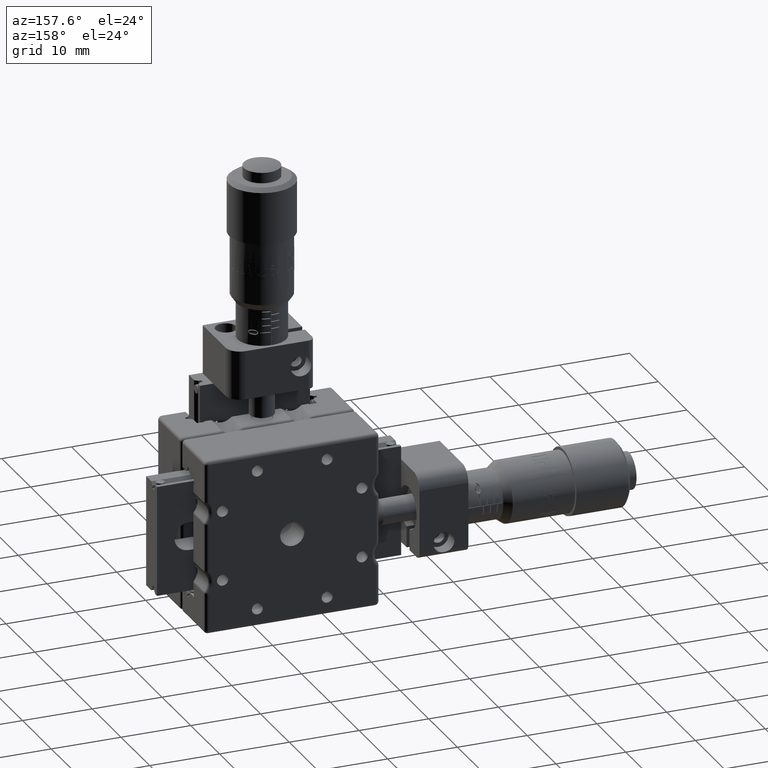
[diagram: clean part render]
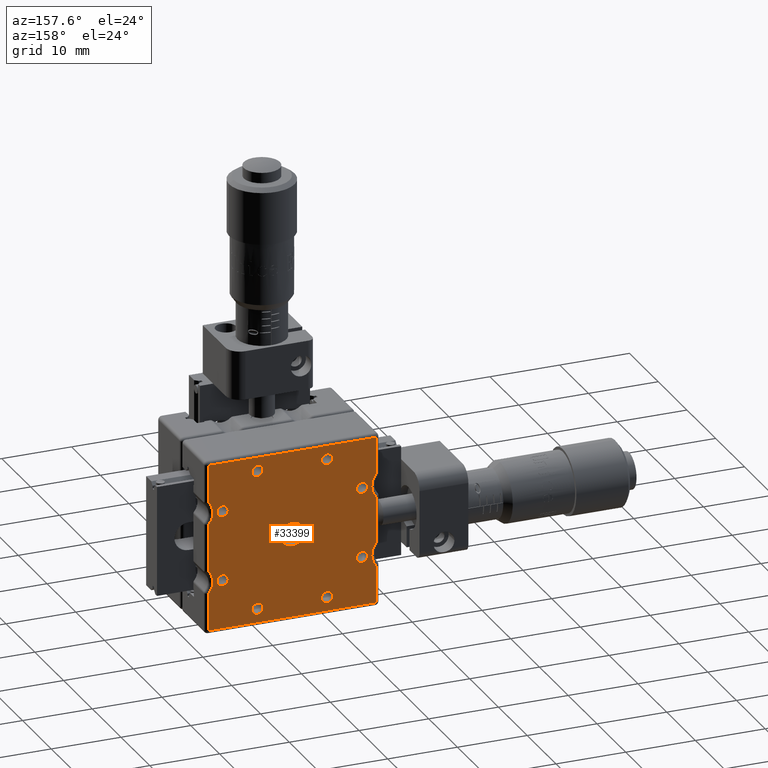
[diagram: same view with one face highlighted and labeled with its STEP entity id]
A machine part, auxiliary view. The second image highlights one B-rep face of the part: STEP entity #33399.
In plain terms, the highlighted planar face has unit normal (0, -1, -0).
Its self-contained STEP definition (entity closure, byte-faithful):
#472 = ORIENTED_EDGE ( 'NONE', *, *, #6171, .F. ) ;
#822 = LINE ( 'NONE', #61356, #42499 ) ;
#1231 = EDGE_CURVE ( 'NONE', #59521, #19149, #70588, .T. ) ;
#1319 = ORIENTED_EDGE ( 'NONE', *, *, #9478, .T. ) ;
#1430 = ORIENTED_EDGE ( 'NONE', *, *, #11094, .F. ) ;
#1794 = CARTESIAN_POINT ( 'NONE',  ( 13.90000000000090500, 16.80000000000006100, 5.000000000000875700 ) ) ;
#1801 = CIRCLE ( 'NONE', #46111, 0.7999999999999908300 ) ;
#2270 = AXIS2_PLACEMENT_3D ( 'NONE', #32698, #20979, #59520 ) ;
#3761 = DIRECTION ( 'NONE',  ( 1.227876978355398100E-016, -1.000000000000000000, -2.515652407670608200E-016 ) ) ;
#3907 = EDGE_CURVE ( 'NONE', #68185, #31062, #36801, .T. ) ;
#4210 = EDGE_CURVE ( 'NONE', #15828, #25136, #11263, .T. ) ;
#4254 = EDGE_LOOP ( 'NONE', ( #7870, #7266 ) ) ;
#4315 = CIRCLE ( 'NONE', #2270, 0.7999999999999917200 ) ;
#4368 = CARTESIAN_POINT ( 'NONE',  ( 9.200000000000891000, 16.80000000000008600, -4.999999999999147300 ) ) ;
#4640 = VECTOR ( 'NONE', #44980, 1000.000000000000000 ) ;
#4719 = CIRCLE ( 'NONE', #25484, 0.7999999999999917200 ) ;
#4734 = CARTESIAN_POINT ( 'NONE',  ( -11.99999999999919900, 16.80000000000002900, 12.50000000000092000 ) ) ;
#4745 = EDGE_CURVE ( 'NONE', #32799, #48071, #37639, .T. ) ;
#4914 = ORIENTED_EDGE ( 'NONE', *, *, #53458, .F. ) ;
#5644 = ORIENTED_EDGE ( 'NONE', *, *, #41510, .F. ) ;
#5823 = CARTESIAN_POINT ( 'NONE',  ( 12.00000000000090600, 16.80000000000009000, -12.49999999999918500 ) ) ;
#6171 = EDGE_CURVE ( 'NONE', #46393, #20203, #54425, .T. ) ;
#6374 = LINE ( 'NONE', #63271, #4640 ) ;
#6593 = DIRECTION ( 'NONE',  ( 1.227876978355398100E-016, -1.000000000000000000, -2.515652407670645600E-016 ) ) ;
#6645 = AXIS2_PLACEMENT_3D ( 'NONE', #17905, #56863, #7656 ) ;
#7218 = CARTESIAN_POINT ( 'NONE',  ( -5.799999999999133000, 16.80000000000003300, 10.00000000000089400 ) ) ;
#7266 = ORIENTED_EDGE ( 'NONE', *, *, #51140, .F. ) ;
#7652 = ORIENTED_EDGE ( 'NONE', *, *, #41214, .T. ) ;
#7656 = DIRECTION ( 'NONE',  ( 1.000000000000000000, 0.0000000000000000000, 0.0000000000000000000 ) ) ;
#7763 = DIRECTION ( 'NONE',  ( -1.227876978355398100E-016, 1.000000000000000000, 1.291005608523286500E-016 ) ) ;
#7870 = ORIENTED_EDGE ( 'NONE', *, *, #39373, .F. ) ;
#8167 = DIRECTION ( 'NONE',  ( 1.000000000000000000, 0.0000000000000000000, 0.0000000000000000000 ) ) ;
#8244 = EDGE_LOOP ( 'NONE', ( #5644, #12416 ) ) ;
#8655 = DIRECTION ( 'NONE',  ( -1.227876978355398100E-016, 1.000000000000000000, 1.291005608523286500E-016 ) ) ;
#9239 = CARTESIAN_POINT ( 'NONE',  ( -11.99999999999919900, 16.80000000000005800, -6.428285685707740200 ) ) ;
#9288 = VECTOR ( 'NONE', #47335, 1000.000000000000000 ) ;
#9478 = EDGE_CURVE ( 'NONE', #48170, #15828, #51620, .T. ) ;
#9484 = CIRCLE ( 'NONE', #27191, 0.7999999999999908300 ) ;
#9579 = EDGE_CURVE ( 'NONE', #12266, #22548, #4719, .T. ) ;
#9778 = CARTESIAN_POINT ( 'NONE',  ( -9.999999999999172200, 16.80000000000003300, 5.000000000000873100 ) ) ;
#9949 = EDGE_LOOP ( 'NONE', ( #26007, #29462, #58750, #23404, #26403, #1319, #65244, #10571, #22821, #7652, #35521, #29638 ) ) ;
#10358 = DIRECTION ( 'NONE',  ( 1.000000000000000000, 0.0000000000000000000, 0.0000000000000000000 ) ) ;
#10473 = VERTEX_POINT ( 'NONE', #29522 ) ;
#10476 = CARTESIAN_POINT ( 'NONE',  ( -4.999999999999144700, 16.80000000000003300, 10.00000000000089400 ) ) ;
#10571 = ORIENTED_EDGE ( 'NONE', *, *, #12342, .T. ) ;
#11032 = CARTESIAN_POINT ( 'NONE',  ( 12.00000000000090600, 16.80000000000009000, -12.49999999999918500 ) ) ;
#11053 = CARTESIAN_POINT ( 'NONE',  ( -11.99999999999919900, 16.80000000000005800, -6.624807680926363000 ) ) ;
#11094 = EDGE_CURVE ( 'NONE', #10473, #31447, #64217, .T. ) ;
#11123 = FACE_OUTER_BOUND ( 'NONE', #9949, .T. ) ;
#11263 = CIRCLE ( 'NONE', #31278, 2.500000000000008400 ) ;
#11643 = CARTESIAN_POINT ( 'NONE',  ( 12.00000000000090600, 16.80000000000009000, -11.99999999999918500 ) ) ;
#12224 = EDGE_CURVE ( 'NONE', #39520, #22483, #59903, .T. ) ;
#12266 = VERTEX_POINT ( 'NONE', #4368 ) ;
#12285 = DIRECTION ( 'NONE',  ( 0.0000000000000000000, 0.0000000000000000000, -1.000000000000000000 ) ) ;
#12342 = EDGE_CURVE ( 'NONE', #25136, #18770, #67505, .T. ) ;
#12397 = VERTEX_POINT ( 'NONE', #11053 ) ;
#12416 = ORIENTED_EDGE ( 'NONE', *, *, #40896, .F. ) ;
#12494 = VERTEX_POINT ( 'NONE', #66658 ) ;
#12550 = CARTESIAN_POINT ( 'NONE',  ( 5.800000000000867600, 16.80000000000008600, -9.999999999999158000 ) ) ;
#13305 = EDGE_CURVE ( 'NONE', #58716, #65351, #1801, .T. ) ;
#13635 = CIRCLE ( 'NONE', #56401, 1.727199999999993600 ) ;
#13689 = EDGE_LOOP ( 'NONE', ( #64502, #61968 ) ) ;
#14233 = DIRECTION ( 'NONE',  ( 1.000000000000000000, 0.0000000000000000000, 0.0000000000000000000 ) ) ;
#14266 = AXIS2_PLACEMENT_3D ( 'NONE', #64706, #21396, #48318 ) ;
#14517 = FACE_BOUND ( 'NONE', #42524, .T. ) ;
#15093 = AXIS2_PLACEMENT_3D ( 'NONE', #9778, #35016, #46433 ) ;
#15598 = CARTESIAN_POINT ( 'NONE',  ( 10.00000000000087900, 16.80000000000008600, -4.999999999999146500 ) ) ;
#15828 = VERTEX_POINT ( 'NONE', #49996 ) ;
#16362 = CARTESIAN_POINT ( 'NONE',  ( 12.00000000000090600, 16.80000000000008600, -6.624807680926355000 ) ) ;
#16460 = ORIENTED_EDGE ( 'NONE', *, *, #12224, .F. ) ;
#17057 = FACE_BOUND ( 'NONE', #8244, .T. ) ;
#17898 = VERTEX_POINT ( 'NONE', #68002 ) ;
#17905 = CARTESIAN_POINT ( 'NONE',  ( 10.00000000000087900, 16.80000000000005800, 5.000000000000873100 ) ) ;
#18728 = CARTESIAN_POINT ( 'NONE',  ( -13.89999999999919700, 16.80000000000003300, 5.000000000000873100 ) ) ;
#18770 = VERTEX_POINT ( 'NONE', #11643 ) ;
#19149 = VERTEX_POINT ( 'NONE', #55211 ) ;
#19699 = PLANE ( 'NONE',  #26470 ) ;
#20203 = VERTEX_POINT ( 'NONE', #37598 ) ;
#20869 = CARTESIAN_POINT ( 'NONE',  ( -5.799999999999135600, 16.80000000000006100, -9.999999999999158000 ) ) ;
#20880 = VECTOR ( 'NONE', #64996, 1000.000000000000000 ) ;
#20945 = ORIENTED_EDGE ( 'NONE', *, *, #32647, .F. ) ;
#20979 = DIRECTION ( 'NONE',  ( -1.227876978355398100E-016, 1.000000000000000000, 1.291005608523286500E-016 ) ) ;
#21236 = CIRCLE ( 'NONE', #60790, 0.7999999999999917200 ) ;
#21396 = DIRECTION ( 'NONE',  ( -1.227876978355398100E-016, 1.000000000000000000, 1.291005608523286500E-016 ) ) ;
#21533 = DIRECTION ( 'NONE',  ( 1.000000000000000000, 0.0000000000000000000, 0.0000000000000000000 ) ) ;
#21860 = ORIENTED_EDGE ( 'NONE', *, *, #9579, .F. ) ;
#22029 = LINE ( 'NONE', #65699, #69553 ) ;
#22483 = VERTEX_POINT ( 'NONE', #52962 ) ;
#22548 = VERTEX_POINT ( 'NONE', #68431 ) ;
#22821 = ORIENTED_EDGE ( 'NONE', *, *, #44130, .T. ) ;
#23228 = DIRECTION ( 'NONE',  ( -1.227876978355398100E-016, 1.000000000000000000, 1.291005608523286500E-016 ) ) ;
#23404 = ORIENTED_EDGE ( 'NONE', *, *, #60034, .T. ) ;
#23705 = AXIS2_PLACEMENT_3D ( 'NONE', #18728, #67717, #30183 ) ;
#23759 = DIRECTION ( 'NONE',  ( 1.227876978355398100E-016, -1.000000000000000000, -2.515652407670645600E-016 ) ) ;
#24285 = DIRECTION ( 'NONE',  ( 1.000000000000000000, 0.0000000000000000000, 0.0000000000000000000 ) ) ;
#24352 = CARTESIAN_POINT ( 'NONE',  ( 5.000000000000876600, 16.80000000000008600, -9.999999999999158000 ) ) ;
#24742 = DIRECTION ( 'NONE',  ( 1.000000000000000000, 0.0000000000000000000, 0.0000000000000000000 ) ) ;
#25136 = VERTEX_POINT ( 'NONE', #16362 ) ;
#25195 = DIRECTION ( 'NONE',  ( 2.162198444339359600E-031, 2.515652407670608200E-016, -1.000000000000000000 ) ) ;
#25484 = AXIS2_PLACEMENT_3D ( 'NONE', #29542, #67558, #24285 ) ;
#26007 = ORIENTED_EDGE ( 'NONE', *, *, #3907, .T. ) ;
#26172 = DIRECTION ( 'NONE',  ( 1.000000000000000000, 0.0000000000000000000, 0.0000000000000000000 ) ) ;
#26299 = DIRECTION ( 'NONE',  ( 1.000000000000000000, 0.0000000000000000000, 0.0000000000000000000 ) ) ;
#26403 = ORIENTED_EDGE ( 'NONE', *, *, #35082, .T. ) ;
#26470 = AXIS2_PLACEMENT_3D ( 'NONE', #57760, #3761, #25195 ) ;
#26581 = CARTESIAN_POINT ( 'NONE',  ( 5.000000000000879300, 16.80000000000005800, 10.00000000000089200 ) ) ;
#26642 = DIRECTION ( 'NONE',  ( -1.227876978355398100E-016, 1.000000000000000000, 1.291005608523286500E-016 ) ) ;
#26761 = EDGE_LOOP ( 'NONE', ( #56505, #20945 ) ) ;
#26928 = CARTESIAN_POINT ( 'NONE',  ( 12.00000000000090600, 16.80000000000006100, 3.375192319073692500 ) ) ;
#26959 = EDGE_LOOP ( 'NONE', ( #69056, #32001 ) ) ;
#27191 = AXIS2_PLACEMENT_3D ( 'NONE', #61824, #67292, #24742 ) ;
#28321 = EDGE_CURVE ( 'NONE', #31062, #57058, #52264, .T. ) ;
#28446 = CARTESIAN_POINT ( 'NONE',  ( -9.199999999999180400, 16.80000000000003300, 5.000000000000873100 ) ) ;
#28692 = CARTESIAN_POINT ( 'NONE',  ( 4.200000000000888400, 16.80000000000008600, -9.999999999999158000 ) ) ;
#28785 = DIRECTION ( 'NONE',  ( 1.000000000000000000, 1.227876978355375400E-016, -2.162203410527708500E-031 ) ) ;
#29079 = ORIENTED_EDGE ( 'NONE', *, *, #58852, .F. ) ;
#29254 = VECTOR ( 'NONE', #43169, 1000.000000000000000 ) ;
#29462 = ORIENTED_EDGE ( 'NONE', *, *, #28321, .T. ) ;
#29522 = CARTESIAN_POINT ( 'NONE',  ( -4.199999999999153700, 16.80000000000003300, 10.00000000000089400 ) ) ;
#29542 = CARTESIAN_POINT ( 'NONE',  ( 10.00000000000087900, 16.80000000000008600, -4.999999999999146500 ) ) ;
#29638 = ORIENTED_EDGE ( 'NONE', *, *, #57722, .T. ) ;
#29654 = DIRECTION ( 'NONE',  ( -1.227876978355398100E-016, 1.000000000000000000, 1.291005608523286500E-016 ) ) ;
#29843 = DIRECTION ( 'NONE',  ( -1.227876978355398100E-016, 1.000000000000000000, 1.291005608523286500E-016 ) ) ;
#30086 = AXIS2_PLACEMENT_3D ( 'NONE', #64182, #26642, #26172 ) ;
#30183 = DIRECTION ( 'NONE',  ( 0.0000000000000000000, 0.0000000000000000000, -1.000000000000000000 ) ) ;
#30220 = CARTESIAN_POINT ( 'NONE',  ( -9.999999999999172200, 16.80000000000003300, 5.000000000000873100 ) ) ;
#30689 = VERTEX_POINT ( 'NONE', #39088 ) ;
#30714 = FACE_BOUND ( 'NONE', #48825, .T. ) ;
#31062 = VERTEX_POINT ( 'NONE', #53911 ) ;
#31278 = AXIS2_PLACEMENT_3D ( 'NONE', #62049, #23759, #62291 ) ;
#31447 = VERTEX_POINT ( 'NONE', #7218 ) ;
#31710 = CARTESIAN_POINT ( 'NONE',  ( -4.999999999999144700, 16.80000000000003300, 10.00000000000089400 ) ) ;
#32001 = ORIENTED_EDGE ( 'NONE', *, *, #42726, .F. ) ;
#32647 = EDGE_CURVE ( 'NONE', #48071, #32799, #4315, .T. ) ;
#32654 = DIRECTION ( 'NONE',  ( 1.000000000000000000, 0.0000000000000000000, 0.0000000000000000000 ) ) ;
#32698 = CARTESIAN_POINT ( 'NONE',  ( -9.999999999999172200, 16.80000000000005800, -4.999999999999146500 ) ) ;
#32799 = VERTEX_POINT ( 'NONE', #50915 ) ;
#33399 = ADVANCED_FACE ( 'NONE', ( #17057, #11123, #64719, #50281, #48569, #30714, #34141, #45165, #57897, #14517 ), #19699, .F. ) ;
#33857 = CARTESIAN_POINT ( 'NONE',  ( -1.727199999999121200, 16.80000000000005800, 8.688373672926211100E-013 ) ) ;
#34141 = FACE_BOUND ( 'NONE', #37249, .T. ) ;
#34444 = VECTOR ( 'NONE', #65149, 1000.000000000000000 ) ;
#34458 = DIRECTION ( 'NONE',  ( 1.000000000000000000, 0.0000000000000000000, 0.0000000000000000000 ) ) ;
#34535 = EDGE_CURVE ( 'NONE', #57058, #12494, #822, .T. ) ;
#34579 = LINE ( 'NONE', #43393, #60078 ) ;
#35016 = DIRECTION ( 'NONE',  ( -1.227876978355398100E-016, 1.000000000000000000, 1.291005608523286500E-016 ) ) ;
#35082 = EDGE_CURVE ( 'NONE', #36905, #48170, #38468, .T. ) ;
#35307 = CIRCLE ( 'NONE', #61054, 0.7999999999999908300 ) ;
#35521 = ORIENTED_EDGE ( 'NONE', *, *, #46909, .T. ) ;
#35789 = AXIS2_PLACEMENT_3D ( 'NONE', #64819, #70267, #65047 ) ;
#35943 = DIRECTION ( 'NONE',  ( -1.227876978355398100E-016, 1.000000000000000000, 1.291005608523286500E-016 ) ) ;
#36801 = CIRCLE ( 'NONE', #23705, 2.500000000000008400 ) ;
#36905 = VERTEX_POINT ( 'NONE', #37149 ) ;
#37149 = CARTESIAN_POINT ( 'NONE',  ( 12.00000000000090600, 16.80000000000005800, 6.624807680928083400 ) ) ;
#37249 = EDGE_LOOP ( 'NONE', ( #29079, #472 ) ) ;
#37289 = DIRECTION ( 'NONE',  ( -1.227876978355398100E-016, 1.000000000000000000, 1.291005608523286500E-016 ) ) ;
#37598 = CARTESIAN_POINT ( 'NONE',  ( 10.80000000000087100, 16.80000000000005800, 5.000000000000873100 ) ) ;
#37639 = CIRCLE ( 'NONE', #61735, 0.7999999999999917200 ) ;
#38047 = CIRCLE ( 'NONE', #14266, 0.7999999999999917200 ) ;
#38342 = LINE ( 'NONE', #9239, #9288 ) ;
#38421 = DIRECTION ( 'NONE',  ( -1.000000000000000000, -1.227876978355375400E-016, 2.162203410527708500E-031 ) ) ;
#38468 = CIRCLE ( 'NONE', #41158, 2.500000000000008400 ) ;
#38504 = VERTEX_POINT ( 'NONE', #28692 ) ;
#38803 = CARTESIAN_POINT ( 'NONE',  ( 1.727200000000860000, 16.80000000000005800, 8.693135444375171300E-013 ) ) ;
#39088 = CARTESIAN_POINT ( 'NONE',  ( -11.99999999999919900, 16.80000000000006100, -11.99999999999918500 ) ) ;
#39373 = EDGE_CURVE ( 'NONE', #56004, #38504, #9484, .T. ) ;
#39489 = CARTESIAN_POINT ( 'NONE',  ( 8.664027699618334400E-013, 16.80000000000005800, 8.693135444375171300E-013 ) ) ;
#39520 = VERTEX_POINT ( 'NONE', #20869 ) ;
#40896 = EDGE_CURVE ( 'NONE', #47054, #55855, #66070, .T. ) ;
#41158 = AXIS2_PLACEMENT_3D ( 'NONE', #1794, #6593, #12285 ) ;
#41214 = EDGE_CURVE ( 'NONE', #30689, #12397, #38342, .T. ) ;
#41510 = EDGE_CURVE ( 'NONE', #55855, #47054, #13635, .T. ) ;
#42243 = DIRECTION ( 'NONE',  ( -1.227876978355398100E-016, 1.000000000000000000, 1.291005608523286500E-016 ) ) ;
#42499 = VECTOR ( 'NONE', #28785, 1000.000000000000000 ) ;
#42524 = EDGE_LOOP ( 'NONE', ( #65801, #16460 ) ) ;
#42642 = CIRCLE ( 'NONE', #64997, 0.7999999999999908300 ) ;
#42726 = EDGE_CURVE ( 'NONE', #65351, #58716, #50947, .T. ) ;
#43169 = DIRECTION ( 'NONE',  ( 2.162198444339360100E-031, 2.515652407670608200E-016, -1.000000000000000000 ) ) ;
#43393 = CARTESIAN_POINT ( 'NONE',  ( -11.99999999999919900, 16.80000000000003300, 3.571714314292310000 ) ) ;
#43634 = CIRCLE ( 'NONE', #35789, 2.500000000000008400 ) ;
#43850 = AXIS2_PLACEMENT_3D ( 'NONE', #62913, #8655, #64295 ) ;
#44130 = EDGE_CURVE ( 'NONE', #18770, #30689, #22029, .T. ) ;
#44980 = DIRECTION ( 'NONE',  ( 2.162198444339360100E-031, 2.515652407670608200E-016, -1.000000000000000000 ) ) ;
#45165 = FACE_BOUND ( 'NONE', #4254, .T. ) ;
#46111 = AXIS2_PLACEMENT_3D ( 'NONE', #26581, #47982, #21533 ) ;
#46219 = CARTESIAN_POINT ( 'NONE',  ( 4.200000000000891000, 16.80000000000005800, 10.00000000000089200 ) ) ;
#46393 = VERTEX_POINT ( 'NONE', #53059 ) ;
#46433 = DIRECTION ( 'NONE',  ( 1.000000000000000000, 0.0000000000000000000, 0.0000000000000000000 ) ) ;
#46909 = EDGE_CURVE ( 'NONE', #12397, #17898, #43634, .T. ) ;
#47054 = VERTEX_POINT ( 'NONE', #33857 ) ;
#47335 = DIRECTION ( 'NONE',  ( -2.162198444339360100E-031, -2.515652407670608200E-016, 1.000000000000000000 ) ) ;
#47982 = DIRECTION ( 'NONE',  ( -1.227876978355398100E-016, 1.000000000000000000, 1.291005608523286500E-016 ) ) ;
#48071 = VERTEX_POINT ( 'NONE', #64485 ) ;
#48170 = VERTEX_POINT ( 'NONE', #26928 ) ;
#48318 = DIRECTION ( 'NONE',  ( 1.000000000000000000, 0.0000000000000000000, 0.0000000000000000000 ) ) ;
#48554 = DIRECTION ( 'NONE',  ( -1.227876978355398100E-016, 1.000000000000000000, 1.291005608523286500E-016 ) ) ;
#48569 = FACE_BOUND ( 'NONE', #26761, .T. ) ;
#48825 = EDGE_LOOP ( 'NONE', ( #67665, #21860 ) ) ;
#49996 = CARTESIAN_POINT ( 'NONE',  ( 12.00000000000090600, 16.80000000000008600, -3.375192319071948600 ) ) ;
#50281 = FACE_BOUND ( 'NONE', #13689, .T. ) ;
#50915 = CARTESIAN_POINT ( 'NONE',  ( -9.199999999999180400, 16.80000000000005800, -4.999999999999146500 ) ) ;
#50947 = CIRCLE ( 'NONE', #64657, 0.7999999999999908300 ) ;
#51140 = EDGE_CURVE ( 'NONE', #38504, #56004, #42642, .T. ) ;
#51620 = LINE ( 'NONE', #11032, #20880 ) ;
#52264 = LINE ( 'NONE', #4734, #34444 ) ;
#52512 = DIRECTION ( 'NONE',  ( 1.000000000000000000, 0.0000000000000000000, 0.0000000000000000000 ) ) ;
#52728 = CARTESIAN_POINT ( 'NONE',  ( -11.99999999999919900, 16.80000000000002900, 12.00000000000092000 ) ) ;
#52962 = CARTESIAN_POINT ( 'NONE',  ( -4.199999999999156400, 16.80000000000006100, -9.999999999999158000 ) ) ;
#53059 = CARTESIAN_POINT ( 'NONE',  ( 9.200000000000891000, 16.80000000000005800, 5.000000000000872200 ) ) ;
#53458 = EDGE_CURVE ( 'NONE', #31447, #10473, #35307, .T. ) ;
#53745 = DIRECTION ( 'NONE',  ( -1.227876978355398100E-016, 1.000000000000000000, 1.291005608523286500E-016 ) ) ;
#53830 = DIRECTION ( 'NONE',  ( -2.162198444339360100E-031, -2.515652407670608200E-016, 1.000000000000000000 ) ) ;
#53911 = CARTESIAN_POINT ( 'NONE',  ( -11.99999999999919900, 16.80000000000003300, 6.624807680928079800 ) ) ;
#54425 = CIRCLE ( 'NONE', #6645, 0.7999999999999917200 ) ;
#54811 = CIRCLE ( 'NONE', #30086, 0.7999999999999908300 ) ;
#55211 = CARTESIAN_POINT ( 'NONE',  ( -10.79999999999916000, 16.80000000000003300, 5.000000000000872200 ) ) ;
#55502 = EDGE_LOOP ( 'NONE', ( #1430, #4914 ) ) ;
#55855 = VERTEX_POINT ( 'NONE', #38803 ) ;
#56004 = VERTEX_POINT ( 'NONE', #12550 ) ;
#56241 = EDGE_CURVE ( 'NONE', #19149, #59521, #57591, .T. ) ;
#56401 = AXIS2_PLACEMENT_3D ( 'NONE', #39489, #23228, #14233 ) ;
#56505 = ORIENTED_EDGE ( 'NONE', *, *, #4745, .F. ) ;
#56863 = DIRECTION ( 'NONE',  ( -1.227876978355398100E-016, 1.000000000000000000, 1.291005608523286500E-016 ) ) ;
#57058 = VERTEX_POINT ( 'NONE', #52728 ) ;
#57591 = CIRCLE ( 'NONE', #15093, 0.7999999999999917200 ) ;
#57722 = EDGE_CURVE ( 'NONE', #17898, #68185, #34579, .T. ) ;
#57760 = CARTESIAN_POINT ( 'NONE',  ( 12.50000000000090600, 16.80000000000009000, -12.49999999999918500 ) ) ;
#57879 = AXIS2_PLACEMENT_3D ( 'NONE', #31710, #53745, #69442 ) ;
#57897 = FACE_BOUND ( 'NONE', #26959, .T. ) ;
#58067 = CARTESIAN_POINT ( 'NONE',  ( 5.800000000000870200, 16.80000000000005800, 10.00000000000089200 ) ) ;
#58610 = CARTESIAN_POINT ( 'NONE',  ( 8.664027699618334400E-013, 16.80000000000005800, 8.693135444375171300E-013 ) ) ;
#58716 = VERTEX_POINT ( 'NONE', #58067 ) ;
#58750 = ORIENTED_EDGE ( 'NONE', *, *, #34535, .T. ) ;
#58852 = EDGE_CURVE ( 'NONE', #20203, #46393, #38047, .T. ) ;
#59520 = DIRECTION ( 'NONE',  ( 1.000000000000000000, 0.0000000000000000000, 0.0000000000000000000 ) ) ;
#59521 = VERTEX_POINT ( 'NONE', #28446 ) ;
#59903 = CIRCLE ( 'NONE', #43850, 0.7999999999999908300 ) ;
#60034 = EDGE_CURVE ( 'NONE', #12494, #36905, #6374, .T. ) ;
#60078 = VECTOR ( 'NONE', #53830, 1000.000000000000000 ) ;
#60790 = AXIS2_PLACEMENT_3D ( 'NONE', #15598, #37289, #10358 ) ;
#61054 = AXIS2_PLACEMENT_3D ( 'NONE', #10476, #48554, #32654 ) ;
#61356 = CARTESIAN_POINT ( 'NONE',  ( 12.50000000000090600, 16.80000000000005800, 12.00000000000092000 ) ) ;
#61735 = AXIS2_PLACEMENT_3D ( 'NONE', #66299, #29654, #67430 ) ;
#61824 = CARTESIAN_POINT ( 'NONE',  ( 5.000000000000876600, 16.80000000000008600, -9.999999999999158000 ) ) ;
#61848 = AXIS2_PLACEMENT_3D ( 'NONE', #58610, #42243, #26299 ) ;
#61968 = ORIENTED_EDGE ( 'NONE', *, *, #56241, .F. ) ;
#61983 = CARTESIAN_POINT ( 'NONE',  ( 5.000000000000879300, 16.80000000000005800, 10.00000000000089200 ) ) ;
#61985 = EDGE_CURVE ( 'NONE', #22548, #12266, #21236, .T. ) ;
#62049 = CARTESIAN_POINT ( 'NONE',  ( 13.90000000000090600, 16.80000000000008600, -4.999999999999150000 ) ) ;
#62291 = DIRECTION ( 'NONE',  ( 0.0000000000000000000, 0.0000000000000000000, -1.000000000000000000 ) ) ;
#62913 = CARTESIAN_POINT ( 'NONE',  ( -4.999999999999147300, 16.80000000000006100, -9.999999999999158000 ) ) ;
#63271 = CARTESIAN_POINT ( 'NONE',  ( 12.00000000000090600, 16.80000000000009000, -12.49999999999918500 ) ) ;
#64182 = CARTESIAN_POINT ( 'NONE',  ( -4.999999999999147300, 16.80000000000006100, -9.999999999999158000 ) ) ;
#64217 = CIRCLE ( 'NONE', #57879, 0.7999999999999908300 ) ;
#64295 = DIRECTION ( 'NONE',  ( 1.000000000000000000, 0.0000000000000000000, 0.0000000000000000000 ) ) ;
#64485 = CARTESIAN_POINT ( 'NONE',  ( -10.79999999999916000, 16.80000000000005800, -4.999999999999147300 ) ) ;
#64502 = ORIENTED_EDGE ( 'NONE', *, *, #1231, .F. ) ;
#64657 = AXIS2_PLACEMENT_3D ( 'NONE', #61983, #7763, #34458 ) ;
#64706 = CARTESIAN_POINT ( 'NONE',  ( 10.00000000000087900, 16.80000000000005800, 5.000000000000873100 ) ) ;
#64719 = FACE_BOUND ( 'NONE', #55502, .T. ) ;
#64819 = CARTESIAN_POINT ( 'NONE',  ( -13.89999999999919600, 16.80000000000005800, -4.999999999999153600 ) ) ;
#64996 = DIRECTION ( 'NONE',  ( 2.162198444339360100E-031, 2.515652407670608200E-016, -1.000000000000000000 ) ) ;
#64997 = AXIS2_PLACEMENT_3D ( 'NONE', #24352, #29843, #8167 ) ;
#65047 = DIRECTION ( 'NONE',  ( 0.0000000000000000000, 0.0000000000000000000, -1.000000000000000000 ) ) ;
#65149 = DIRECTION ( 'NONE',  ( -2.162198444339360100E-031, -2.515652407670608200E-016, 1.000000000000000000 ) ) ;
#65244 = ORIENTED_EDGE ( 'NONE', *, *, #4210, .T. ) ;
#65351 = VERTEX_POINT ( 'NONE', #46219 ) ;
#65699 = CARTESIAN_POINT ( 'NONE',  ( 12.50000000000090600, 16.80000000000009000, -11.99999999999918500 ) ) ;
#65801 = ORIENTED_EDGE ( 'NONE', *, *, #66793, .F. ) ;
#66070 = CIRCLE ( 'NONE', #61848, 1.727199999999993600 ) ;
#66299 = CARTESIAN_POINT ( 'NONE',  ( -9.999999999999172200, 16.80000000000005800, -4.999999999999146500 ) ) ;
#66459 = AXIS2_PLACEMENT_3D ( 'NONE', #30220, #35943, #52512 ) ;
#66658 = CARTESIAN_POINT ( 'NONE',  ( 12.00000000000090600, 16.80000000000005800, 12.00000000000092000 ) ) ;
#66793 = EDGE_CURVE ( 'NONE', #22483, #39520, #54811, .T. ) ;
#67292 = DIRECTION ( 'NONE',  ( -1.227876978355398100E-016, 1.000000000000000000, 1.291005608523286500E-016 ) ) ;
#67430 = DIRECTION ( 'NONE',  ( 1.000000000000000000, 0.0000000000000000000, 0.0000000000000000000 ) ) ;
#67505 = LINE ( 'NONE', #5823, #29254 ) ;
#67558 = DIRECTION ( 'NONE',  ( -1.227876978355398100E-016, 1.000000000000000000, 1.291005608523286500E-016 ) ) ;
#67665 = ORIENTED_EDGE ( 'NONE', *, *, #61985, .F. ) ;
#67717 = DIRECTION ( 'NONE',  ( 1.227876978355398100E-016, -1.000000000000000000, -2.515652407670645600E-016 ) ) ;
#68002 = CARTESIAN_POINT ( 'NONE',  ( -11.99999999999919900, 16.80000000000005800, -3.375192319071947700 ) ) ;
#68185 = VERTEX_POINT ( 'NONE', #70132 ) ;
#68431 = CARTESIAN_POINT ( 'NONE',  ( 10.80000000000087100, 16.80000000000008600, -4.999999999999146500 ) ) ;
#69056 = ORIENTED_EDGE ( 'NONE', *, *, #13305, .F. ) ;
#69442 = DIRECTION ( 'NONE',  ( 1.000000000000000000, 0.0000000000000000000, 0.0000000000000000000 ) ) ;
#69553 = VECTOR ( 'NONE', #38421, 1000.000000000000000 ) ;
#70132 = CARTESIAN_POINT ( 'NONE',  ( -11.99999999999919900, 16.80000000000003300, 3.375192319073689000 ) ) ;
#70267 = DIRECTION ( 'NONE',  ( 1.227876978355398100E-016, -1.000000000000000000, -2.515652407670645600E-016 ) ) ;
#70588 = CIRCLE ( 'NONE', #66459, 0.7999999999999917200 ) ;